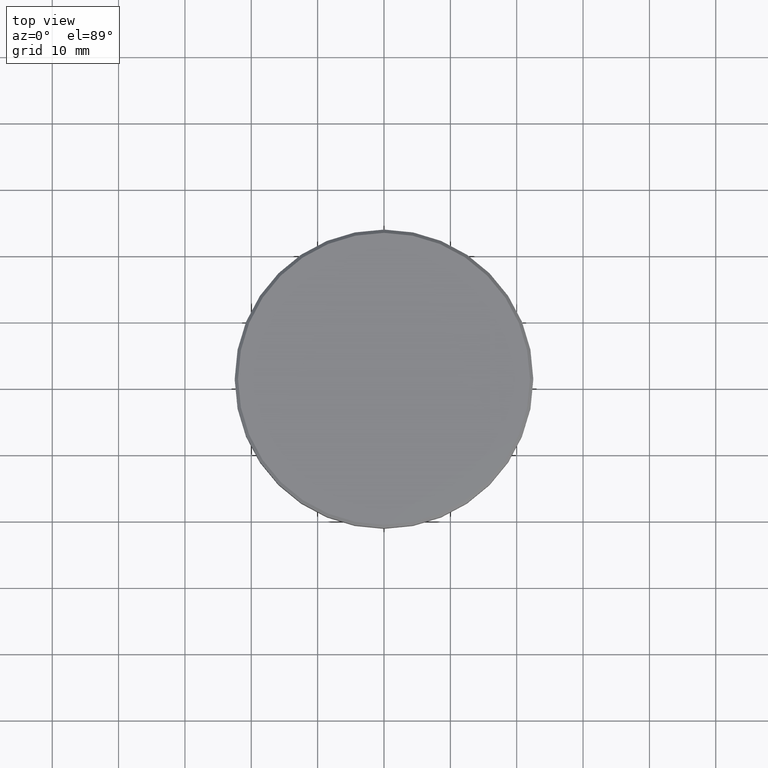
[diagram: clean part render]
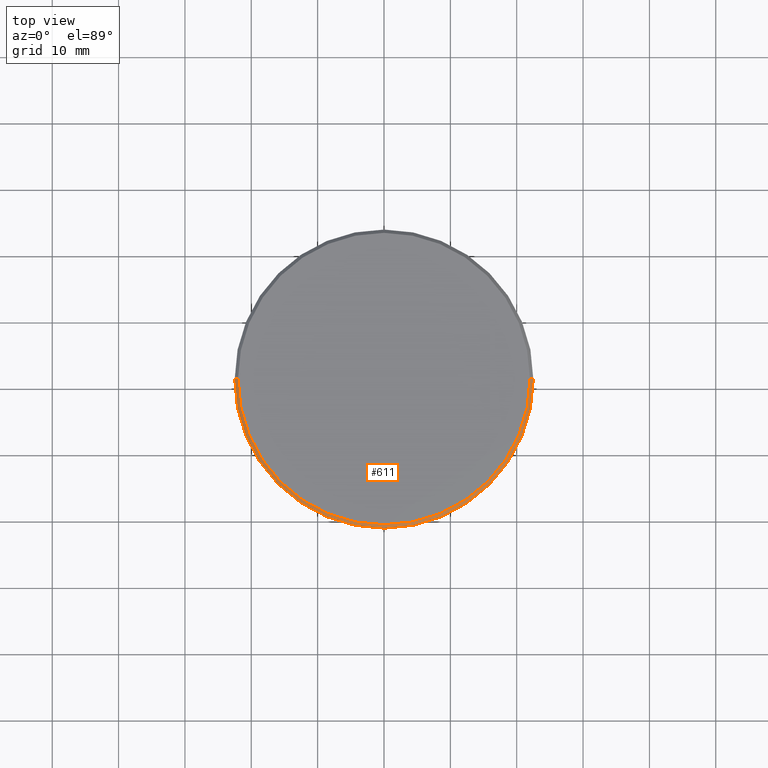
[diagram: same view with one face highlighted and labeled with its STEP entity id]
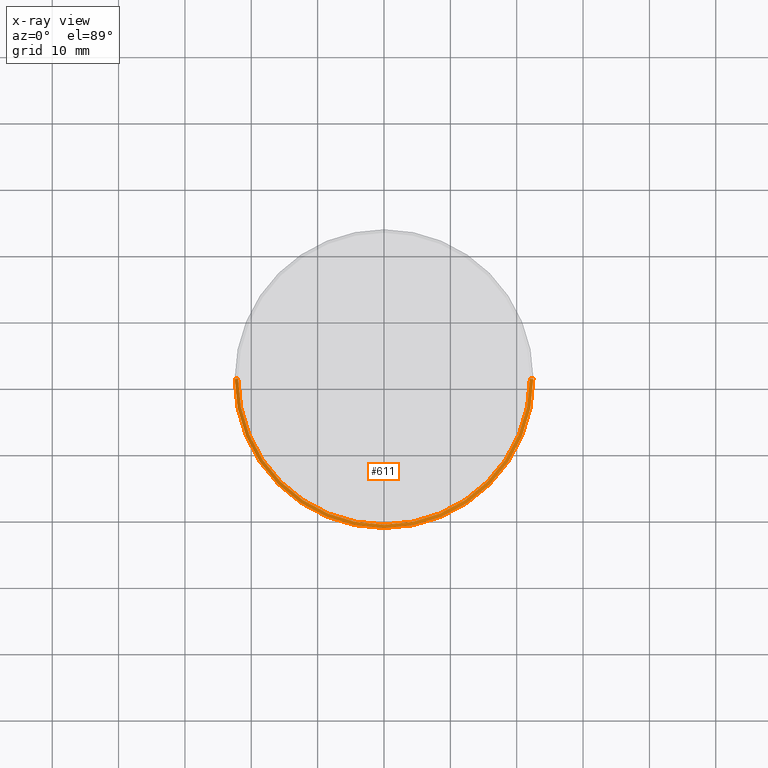
[diagram: x-ray of the same camera — body ghosted, the highlighted face saturated]
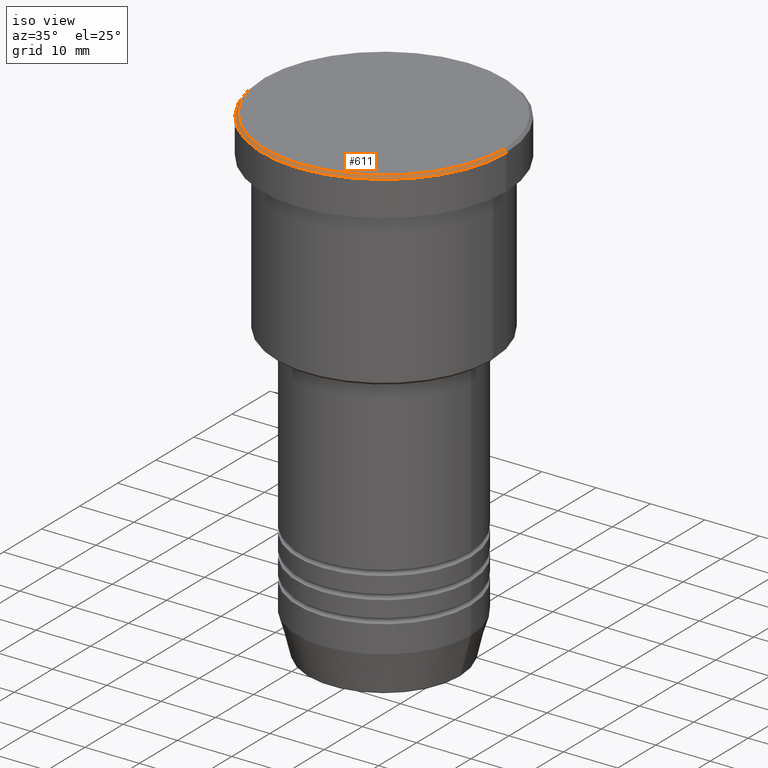
[diagram: same view with one face highlighted and labeled with its STEP entity id]
A machine part, top view. The second image highlights one B-rep face of the part: STEP entity #611.
The next image is the same camera in x-ray: the body ghosted, the highlighted face saturated — about 0% of this face is hidden behind the body in this view.
A second angle (iso view) of the same face is appended — the face is thin or edge-on in the first view.
In plain terms, the highlighted conical surface has half-angle 45 deg.
Its self-contained STEP definition (entity closure, byte-faithful):
#18 = EDGE_CURVE ( 'NONE', #400, #97, #204, .T. ) ;
#20 = DIRECTION ( 'NONE',  ( -0.7071067811865574537, 0.000000000000000000, -0.7071067811865376918 ) ) ;
#29 = ORIENTED_EDGE ( 'NONE', *, *, #348, .F. ) ;
#43 = DIRECTION ( 'NONE',  ( -0.000000000000000000, -0.000000000000000000, 1.000000000000000000 ) ) ;
#57 = CARTESIAN_POINT ( 'NONE',  ( -22.50000000000000000, 2.755455298081544778E-15, -0.4999999999999935052 ) ) ;
#97 = VERTEX_POINT ( 'NONE', #941 ) ;
#127 = CIRCLE ( 'NONE', #407, 21.99999999999999289 ) ;
#145 = DIRECTION ( 'NONE',  ( 1.000000000000000000, 0.000000000000000000, 0.000000000000000000 ) ) ;
#191 = EDGE_LOOP ( 'NONE', ( #595, #29, #1103, #513 ) ) ;
#204 = LINE ( 'NONE', #657, #277 ) ;
#224 = CONICAL_SURFACE ( 'NONE', #1011, 21.99999999999999289, 0.7853981633974621568 ) ;
#239 = AXIS2_PLACEMENT_3D ( 'NONE', #531, #995, #145 ) ;
#270 = DIRECTION ( 'NONE',  ( 0.000000000000000000, 0.000000000000000000, -1.000000000000000000 ) ) ;
#277 = VECTOR ( 'NONE', #365, 999.9999999999998863 ) ;
#289 = LINE ( 'NONE', #837, #836 ) ;
#348 = EDGE_CURVE ( 'NONE', #481, #400, #127, .T. ) ;
#365 = DIRECTION ( 'NONE',  ( 0.7071067811865574537, 8.659560562355054885E-17, -0.7071067811865376918 ) ) ;
#400 = VERTEX_POINT ( 'NONE', #496 ) ;
#407 = AXIS2_PLACEMENT_3D ( 'NONE', #859, #43, #863 ) ;
#453 = VERTEX_POINT ( 'NONE', #57 ) ;
#459 = EDGE_CURVE ( 'NONE', #97, #453, #763, .T. ) ;
#481 = VERTEX_POINT ( 'NONE', #788 ) ;
#496 = CARTESIAN_POINT ( 'NONE',  ( 21.99999999999999289, 2.724839128102860202E-15, 0.000000000000000000 ) ) ;
#513 = ORIENTED_EDGE ( 'NONE', *, *, #459, .F. ) ;
#531 = CARTESIAN_POINT ( 'NONE',  ( 0.000000000000000000, 0.000000000000000000, -0.4999999999999935052 ) ) ;
#543 = EDGE_CURVE ( 'NONE', #481, #453, #289, .T. ) ;
#595 = ORIENTED_EDGE ( 'NONE', *, *, #18, .F. ) ;
#611 = ADVANCED_FACE ( 'NONE', ( #730 ), #224, .T. ) ;
#657 = CARTESIAN_POINT ( 'NONE',  ( 21.99999999999999289, 2.694222958124176020E-15, 0.000000000000000000 ) ) ;
#730 = FACE_OUTER_BOUND ( 'NONE', #191, .T. ) ;
#763 = CIRCLE ( 'NONE', #239, 22.50000000000000000 ) ;
#788 = CARTESIAN_POINT ( 'NONE',  ( -21.99999999999999289, 0.000000000000000000, 0.000000000000000000 ) ) ;
#836 = VECTOR ( 'NONE', #20, 999.9999999999998863 ) ;
#837 = CARTESIAN_POINT ( 'NONE',  ( -21.99999999999999289, 0.000000000000000000, 0.000000000000000000 ) ) ;
#859 = CARTESIAN_POINT ( 'NONE',  ( 0.000000000000000000, 0.000000000000000000, 0.000000000000000000 ) ) ;
#863 = DIRECTION ( 'NONE',  ( 1.000000000000000000, 0.000000000000000000, 0.000000000000000000 ) ) ;
#913 = DIRECTION ( 'NONE',  ( -1.000000000000000000, 0.000000000000000000, 0.000000000000000000 ) ) ;
#941 = CARTESIAN_POINT ( 'NONE',  ( 22.50000000000000000, 0.000000000000000000, -0.4999999999999935052 ) ) ;
#995 = DIRECTION ( 'NONE',  ( 0.000000000000000000, 0.000000000000000000, -1.000000000000000000 ) ) ;
#1011 = AXIS2_PLACEMENT_3D ( 'NONE', #1093, #270, #913 ) ;
#1093 = CARTESIAN_POINT ( 'NONE',  ( 0.000000000000000000, 0.000000000000000000, 0.000000000000000000 ) ) ;
#1103 = ORIENTED_EDGE ( 'NONE', *, *, #543, .T. ) ;